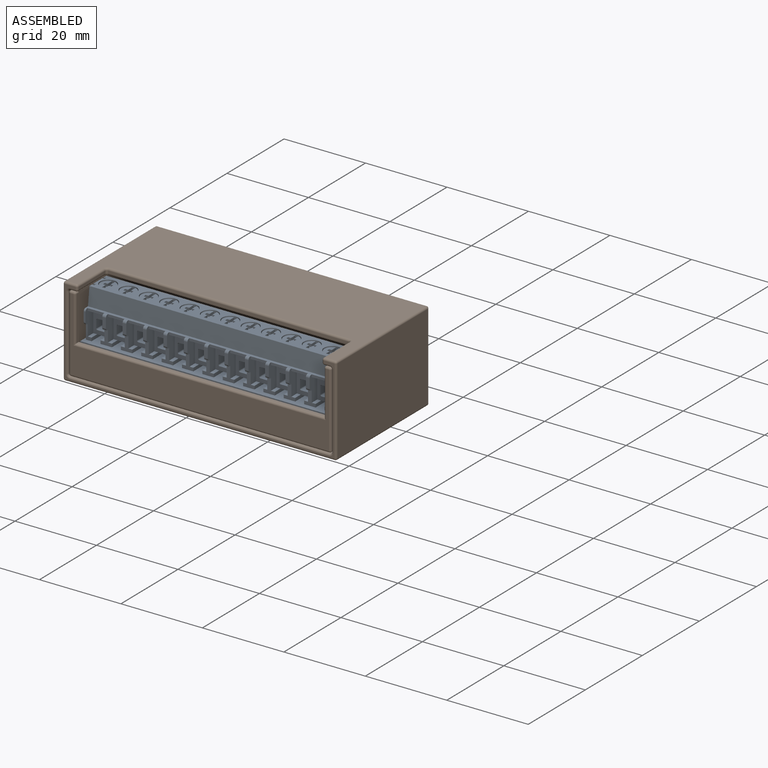
[diagram: assembled view]
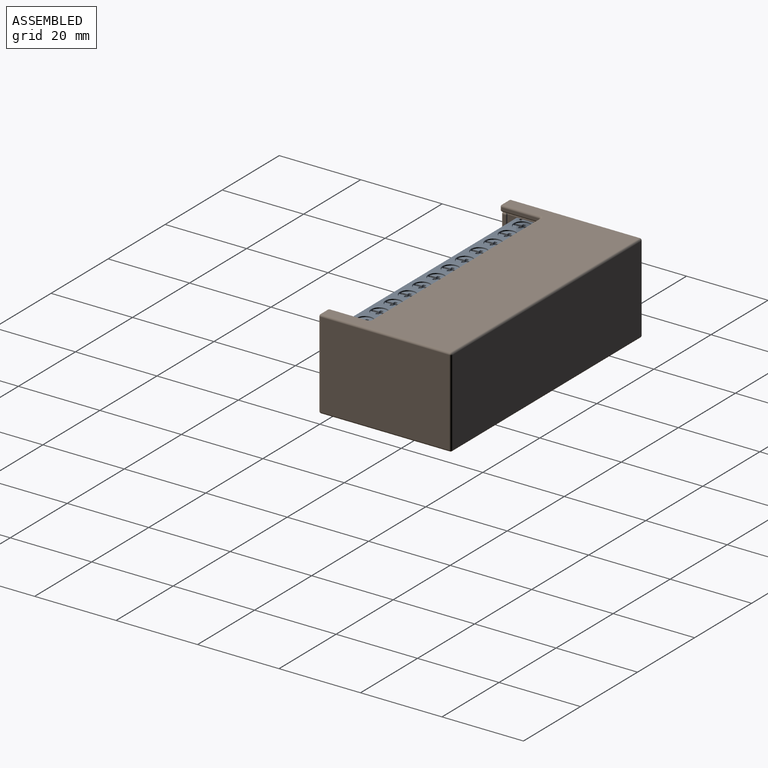
[diagram: assembled view, second angle]
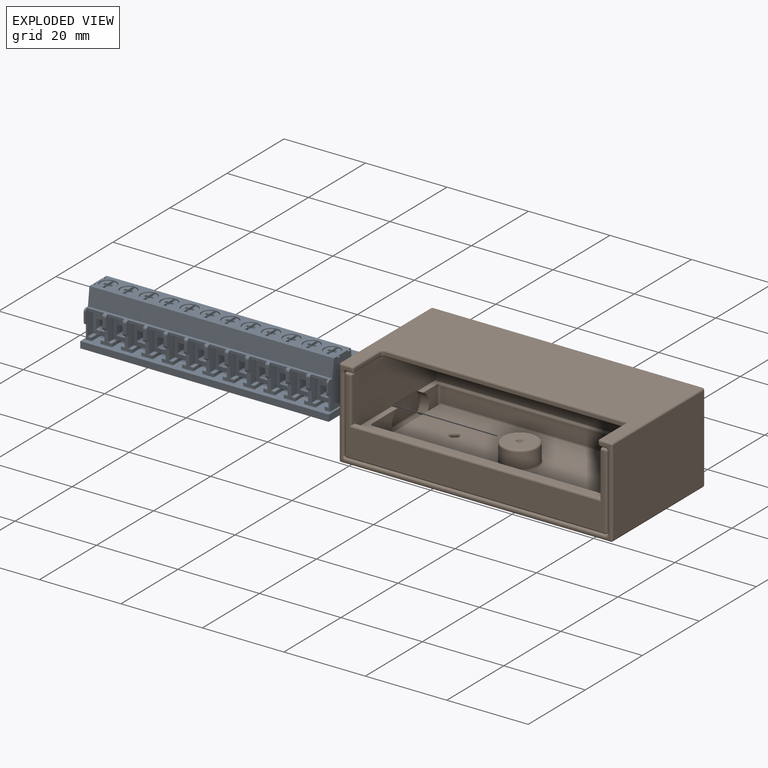
[diagram: exploded view]
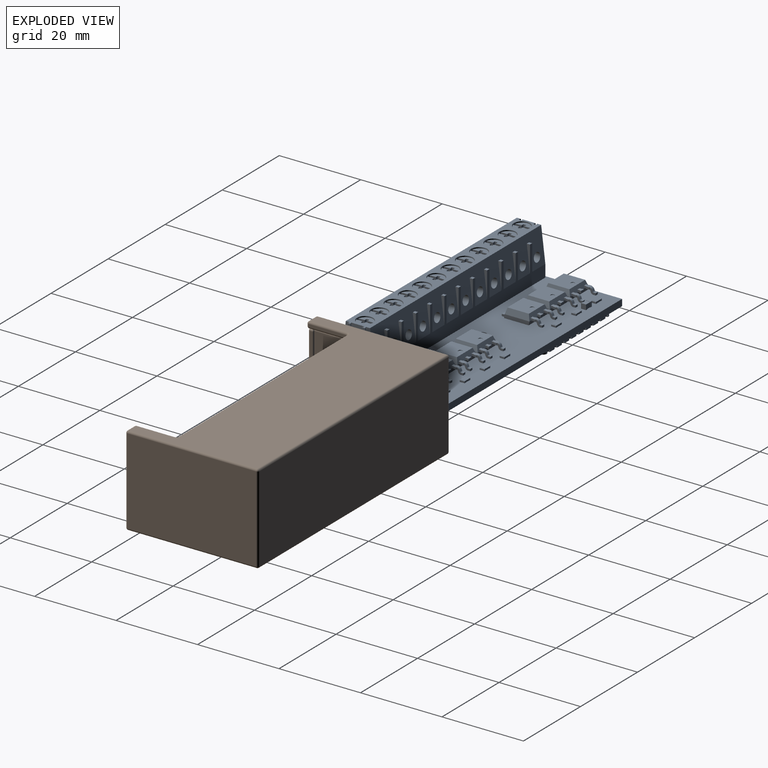
[diagram: exploded view, second angle]
FCSTD DOCUMENT  (FreeCAD 1.0R39319 (Git))
Label: pcb-led-lights
License: All rights reserved
LicenseURL: https://en.wikipedia.org/wiki/All_rights_reserved
objects: Part::Feature×127, App::Part×109, App::Link×16, Sketcher::SketchObject×12, PartDesign::Pad×5, PartDesign::Pocket×5, PartDesign::SubShapeBinder×2, PartDesign::Fillet×2, PartDesign::Body×2, PartDesign::CoordinateSystem×1, Spreadsheet::Sheet×1, PartDesign::ShapeBinder×1, PartDesign::Hole×1
note: 196 computed .brp shape members not serialized (recipe doc carries the construction recipe); baked Part::Feature solids carry a one-line shape summary decoded from their .brp

FEATURE [PartDesign::CoordinateSystem] Local_CS_8cc4
  AttacherType = Attacher::AttachEngine3D
  MapMode = 2
FEATURE [Part::Feature] Pcb_8cc4
  shape: bbox 61 x 28 x 1.6 mm, 19 faces (baked)
FEATURE [Sketcher::SketchObject] PCB_Sketch_8cc4
  ArcFitTolerance = 1e-06
  FullyConstrained = false
  MakeInternals = false
  sketch-geometry (4):
    g0: LineSegment StartX=34 StartY=-32 StartZ=0 EndX=95 EndY=-32 EndZ=0
    g1: LineSegment StartX=95 StartY=-32 StartZ=0 EndX=95 EndY=-60 EndZ=0
    g2: LineSegment StartX=95 StartY=-60 StartZ=0 EndX=34 EndY=-60 EndZ=0
    g3: LineSegment StartX=34 StartY=-60 StartZ=0 EndX=34 EndY=-32 EndZ=0
  constraints (4):
    c: Coincident(g2,g3)
    c: Coincident(g0,g3)
    c: Coincident(g1,g2)
    c: Coincident(g0,g1)
FEATURE [App::Part] Board_Geoms_8cc4
  Group = -> [Pcb_8cc4,PCB_Sketch_8cc4]
  Origin = -> Origin
FEATURE [Part::Feature] Part__Feature  label="932d09b3-9c39-11ed-93f0-dde97e994e83_part"
  shape: bbox 6.22 x 6.5 x 2.3 mm, 13 faces (baked)
FEATURE [App::Part] _32d09b3_9c39_11ed_93f0_dde97e994e83  label="932d09b3-9c39-11ed-93f0-dde97e994e83"
  Group = -> [Part__Feature]
  Origin = -> Origin008
FEATURE [Part::Feature] Part__Feature001  label="932d09b4-9c39-11ed-93f0-dde97e994e83_part"
  shape: bbox 5.24 x 5.4 x 0.5 mm, 16 faces (baked)
FEATURE [App::Part] _32d09b4_9c39_11ed_93f0_dde97e994e83  label="932d09b4-9c39-11ed-93f0-dde97e994e83"
  Group = -> [Part__Feature001]
  Origin = -> Origin009
FEATURE [Part::Feature] Part__Feature002  label="932d09b5-9c39-11ed-93f0-dde97e994e83_part"
  shape: bbox 3.552 x 0.99 x 1.44 mm, 22 faces (baked)
FEATURE [Part::Feature] Part__Feature003  label="932d09b5-9c39-11ed-93f0-dde97e994e83_part001"
  shape: bbox 1.672 x 0.99 x 0.5 mm, 10 faces (baked)
FEATURE [Part::Feature] Part__Feature004  label="932d09b5-9c39-11ed-93f0-dde97e994e83_part002"
  shape: bbox 3.552 x 0.99 x 1.44 mm, 22 faces (baked)
FEATURE [App::Part] _32d09b5_9c39_11ed_93f0_dde97e994e83_part  label="932d09b5-9c39-11ed-93f0-dde97e994e83_part003"
  Group = -> [Part__Feature002,Part__Feature003,Part__Feature004]
  Origin = -> Origin010
FEATURE [App::Part] _32d09b5_9c39_11ed_93f0_dde97e994e83  label="932d09b5-9c39-11ed-93f0-dde97e994e83"
  Group = -> [_32d09b5_9c39_11ed_93f0_dde97e994e83_part]
  Origin = -> Origin011
FEATURE [App::Part] _32d09b2_9c39_11ed_93f0_dde97e994e83  label="932d09b2-9c39-11ed-93f0-dde97e994e83"
  Group = -> [_32d09b3_9c39_11ed_93f0_dde97e994e83,_32d09b4_9c39_11ed_93f0_dde97e994e83,_32d09b5_9c39_11ed_93f0_dde97e994e83]
  Origin = -> Origin012
FEATURE [App::Part] CQ_assembly  label="Q2_CQ assembly_edc7eedcdf41"
  Group = -> [_32d09b2_9c39_11ed_93f0_dde97e994e83]
  Origin = -> Origin013
  Placement = pos=(44.725,-43.065,0) rot=(0,0,-1;1.5708rad)
FEATURE [Part::Feature] Shape  label="R2_R_0805_2012Metric_68a99243c853"
  Placement = pos=(45.004,-35.5,0) rot=(0,0,1;0rad)
  shape: bbox 2 x 1.2 x 0.45 mm, 26 faces (baked)
FEATURE [App::Link] Q2_CQ_assembly_edc7eedcdf41_ln_  label="Q3_CQ assembly_f58a9bf33e79"
  LinkPlacement = pos=(51.8622,-43.065,0) rot=(0,0,-1;1.5708rad)
  LinkedObject = -> CQ_assembly
  Placement = pos=(51.8622,-43.065,0) rot=(0,0,-1;1.5708rad)
FEATURE [App::Link] Q2_CQ_assembly_edc7eedcdf41_ln_001  label="Q5_CQ assembly_488449aacf6f"
  LinkPlacement = pos=(77.0856,-43.065,0) rot=(0,0,-1;1.5708rad)
  LinkedObject = -> CQ_assembly
  Placement = pos=(77.0856,-43.065,0) rot=(0,0,-1;1.5708rad)
FEATURE [App::Link] Q2_CQ_assembly_edc7eedcdf41_ln_002  label="Q7_CQ assembly_62c27bfdfe16"
  LinkPlacement = pos=(91.1907,-43.0596,0) rot=(0,0,-1;1.5708rad)
  LinkedObject = -> CQ_assembly
  Placement = pos=(91.1907,-43.0596,0) rot=(0,0,-1;1.5708rad)
FEATURE [App::Link] R2_R_0805_2012Metric_68a99243c853_ln_  label="R3_R_0805_2012Metric_262a9b6031d1"
  LinkPlacement = pos=(51.9125,-35.5813,0) rot=(0,0,1;0rad)
  LinkedObject = -> Shape
  Placement = pos=(51.9125,-35.5813,0) rot=(0,0,1;0rad)
FEATURE [App::Link] R2_R_0805_2012Metric_68a99243c853_ln_001  label="R5_R_0805_2012Metric_b6d5afd487c0"
  LinkPlacement = pos=(77.0875,-35.5,0) rot=(0,0,1;0rad)
  LinkedObject = -> Shape
  Placement = pos=(77.0875,-35.5,0) rot=(0,0,1;0rad)
FEATURE [App::Link] R2_R_0805_2012Metric_68a99243c853_ln_002  label="R7_R_0805_2012Metric_992a4528c202"
  LinkPlacement = pos=(91.0875,-35.5,0) rot=(0,0,1;0rad)
  LinkedObject = -> Shape
  Placement = pos=(91.0875,-35.5,0) rot=(0,0,1;0rad)
FEATURE [App::Link] R2_R_0805_2012Metric_68a99243c853_ln_003  label="R4_R_0805_2012Metric_be362a1d4efe"
  LinkPlacement = pos=(70.0875,-35.5,0) rot=(0,0,1;0rad)
  LinkedObject = -> Shape
  Placement = pos=(70.0875,-35.5,0) rot=(0,0,1;0rad)
FEATURE [Part::Feature] Shape001  label="J1_TerminalBlock_Phoenix_PT_15_12_50_H_1x12_P500mm_Horizontal_85614fca4c1a"
  Placement = pos=(37,-54.5,0) rot=(0,0,1;0rad)
  shape: bbox 60.57 x 9 x 15 mm, 626 faces (baked)
FEATURE [App::Link] Q2_CQ_assembly_edc7eedcdf41_ln_003  label="Q6_CQ assembly_329d31341388"
  LinkPlacement = pos=(84.1407,-43.0596,0) rot=(0,0,-1;1.5708rad)
  LinkedObject = -> CQ_assembly
  Placement = pos=(84.1407,-43.0596,0) rot=(0,0,-1;1.5708rad)
FEATURE [App::Link] Q2_CQ_assembly_edc7eedcdf41_ln_004  label="Q1_CQ assembly_8688bce08c21"
  LinkPlacement = pos=(37.6519,-43.065,0) rot=(0,0,-1;1.5708rad)
  LinkedObject = -> CQ_assembly
  Placement = pos=(37.6519,-43.065,0) rot=(0,0,-1;1.5708rad)
FEATURE [App::Link] Q2_CQ_assembly_edc7eedcdf41_ln_005  label="Q4_CQ assembly_01b1f6b48aea"
  LinkPlacement = pos=(70.025,-43.065,0) rot=(0,0,-1;1.5708rad)
  LinkedObject = -> CQ_assembly
  Placement = pos=(70.025,-43.065,0) rot=(0,0,-1;1.5708rad)
FEATURE [App::Link] R2_R_0805_2012Metric_68a99243c853_ln_004  label="R1_R_0805_2012Metric_8bf60eb6a1d0"
  LinkPlacement = pos=(38.004,-35.5,0) rot=(0,0,1;0rad)
  LinkedObject = -> Shape
  Placement = pos=(38.004,-35.5,0) rot=(0,0,1;0rad)
FEATURE [Part::Feature] Shape002  label="C11_C_0805_2012Metric_26aba6e4beb2"
  Placement = pos=(41.55,-35.5,0) rot=(0,0,1;3.14159rad)
  shape: bbox 2 x 1.25 x 1.25 mm, 28 faces (baked)
FEATURE [App::Link] R2_R_0805_2012Metric_68a99243c853_ln_005  label="R6_R_0805_2012Metric_894dc72cd039"
  LinkPlacement = pos=(84.0875,-35.5,0) rot=(0,0,1;0rad)
  LinkedObject = -> Shape
  Placement = pos=(84.0875,-35.5,0) rot=(0,0,1;0rad)
FEATURE [App::Part] Top_8cc4
  Group = -> [CQ_assembly,Shape,Q2_CQ_assembly_edc7eedcdf41_ln_,Q2_CQ_assembly_edc7eedcdf41_ln_001,Q2_CQ_assembly_edc7eedcdf41_ln_002,R2_R_0805_2012Metric_68a99243c853_ln_,R2_R_0805_2012Metric_68a99243c853_ln_001,R2_R_0805_2012Metric_68a99243c853_ln_002,R2_R_0805_2012Metric_68a99243c853_ln_003,Shape001,Q2_CQ_assembly_edc7eedcdf41_ln_003,Q2_CQ_assembly_edc7eedcdf41_ln_004,Q2_CQ_assembly_edc7eedcdf41_ln_005,+3 more]
  Origin = -> Origin003
FEATURE [App::Link] C11_C_0805_2012Metric_26aba6e4beb2_ln_  label="C1_C_0805_2012Metric_4d4f115a3bc2"
  LinkPlacement = pos=(82.75,-39.2,-1.6) rot=(0.707107,0.707107,0;3.14159rad)
  LinkedObject = -> Shape002
  Placement = pos=(82.75,-39.2,-1.6) rot=(0.707107,0.707107,0;3.14159rad)
FEATURE [Part::Feature] Part__Feature005  label="BOARD"
  Placement = pos=(0,0,-0.798424) rot=(0,0,1;0rad)
  shape: bbox 18.02 x 23.52 x 1.6 mm, 284 faces (baked)
FEATURE [Part::Feature] Part__Feature006  label="USER_LIBRARY-RES_0603-0201_1"
  shape: bbox 0.63 x 0.275 x 0.33 mm, 6 faces (baked)
FEATURE [Part::Feature] Part__Feature007  label="USER_LIBRARY-RES_0603-0201_2"
  shape: bbox 0.1 x 0.325 x 0.33 mm, 14 faces (baked)
FEATURE [Part::Feature] Part__Feature008  label="USER_LIBRARY-RES_0603-0201_3"
  shape: bbox 0.1 x 0.325 x 0.33 mm, 14 faces (baked)
FEATURE [Part::Feature] Part__Feature009  label="USER_LIBRARY-RES_0603-0201_4"
  shape: bbox 0.48 x 0.035 x 0.33 mm, 48 faces (baked)
FEATURE [App::Part] USER_LIBRARY_RES_0603_0201_ASM  label="USER_LIBRARY-RES_0603-0201_ASM"
  Group = -> [Part__Feature006,Part__Feature007,Part__Feature008,Part__Feature009]
  Origin = -> Origin014
  Placement = pos=(-12.3696,-7.69188,0) rot=(0.57735,-0.57735,-0.57735;2.0944rad)
FEATURE [App::Part] L_ASM
  Group = -> [USER_LIBRARY_RES_0603_0201_ASM]
  Origin = -> Origin015
FEATURE [Part::Feature] Part__Feature010  label="USER_LIBRARY-RES_0603-0201_005"
  shape: bbox 0.63 x 0.275 x 0.33 mm, 6 faces (baked)
FEATURE [Part::Feature] Part__Feature011  label="USER_LIBRARY-RES_0603-0201_006"
  shape: bbox 0.1 x 0.325 x 0.33 mm, 14 faces (baked)
FEATURE [Part::Feature] Part__Feature012  label="USER_LIBRARY-RES_0603-0201_007"
  shape: bbox 0.1 x 0.325 x 0.33 mm, 14 faces (baked)
FEATURE [Part::Feature] Part__Feature013  label="USER_LIBRARY-RES_0603-0201_008"
  shape: bbox 0.48 x 0.035 x 0.33 mm, 48 faces (baked)
FEATURE [App::Part] USER_LIBRARY_RES_0603_0201_ASM001  label="USER_LIBRARY-RES_0603-0201_ASM001"
  Group = -> [Part__Feature010,Part__Feature011,Part__Feature012,Part__Feature013]
  Origin = -> Origin016
  Placement = pos=(-4.62272,-5.41028,0) rot=(0.57735,0.57735,0.57735;2.0944rad)
FEATURE [App::Part] R1_ASM
  Group = -> [USER_LIBRARY_RES_0603_0201_ASM001]
  Origin = -> Origin017
FEATURE [Part::Feature] Part__Feature014  label="EXTRUDED-29178"
  shape: bbox 1.5 x 1.8 x 1 mm, 6 faces (baked)
FEATURE [App::Part] _07732368_ASM  label="907732368_ASM"
  Group = -> [Part__Feature014]
  Origin = -> Origin018
  Placement = pos=(-7.62,-0.417579,0) rot=(0,0,1;0rad)
FEATURE [App::Part] LED1_ASM
  Group = -> [_07732368_ASM]
  Origin = -> Origin019
FEATURE [Part::Feature] Part__Feature015  label="2_A"
  shape: bbox 0.1 x 0.32 x 0.32 mm, 206 faces (baked)
FEATURE [Part::Feature] Part__Feature016  label="300"
  shape: bbox 0.1 x 0.32 x 0.32 mm, 18 faces (baked)
FEATURE [Part::Feature] Part__Feature017  label="_10001"
  shape: bbox 0.4 x 0.3 x 0.3 mm, 53 faces (baked)
FEATURE [App::Part] C_0201_1099_AF1_ASM_ASM  label="C_0201-1099_AF1_ASM_ASM"
  Group = -> [Part__Feature015,Part__Feature016,Part__Feature017]
  Origin = -> Origin020
FEATURE [App::Part] C_0201_4408_AF1_ASM_ASM  label="C_0201-4408_AF1_ASM_ASM"
  Group = -> [C_0201_1099_AF1_ASM_ASM]
  Origin = -> Origin021
FEATURE [App::Part] _D_MODEL_ASM  label="3D_MODEL_ASM"
  Group = -> [C_0201_4408_AF1_ASM_ASM]
  Origin = -> Origin022
  Placement = pos=(-13.3916,4.07027,-0.366623) rot=(0,0,-1;1.5708rad)
FEATURE [App::Part] C16_ASM
  Group = -> [_D_MODEL_ASM]
  Origin = -> Origin023
FEATURE [Part::Feature] Part__Feature018  label="EXTRUDED-51780"
  shape: bbox 1.6 x 2 x 1 mm, 6 faces (baked)
FEATURE [App::Part] _07732240_ASM  label="907732240_ASM"
  Group = -> [Part__Feature018]
  Origin = -> Origin024
  Placement = pos=(-12.8778,-5.3848,0) rot=(0,0,1;0rad)
FEATURE [App::Part] Y1_ASM
  Group = -> [_07732240_ASM]
  Origin = -> Origin025
FEATURE [Part::Feature] Part__Feature019  label="USER_LIBRARY-RES_0603-0201_009"
  shape: bbox 0.63 x 0.275 x 0.33 mm, 6 faces (baked)
FEATURE [Part::Feature] Part__Feature020  label="USER_LIBRARY-RES_0603-0201_010"
  shape: bbox 0.1 x 0.325 x 0.33 mm, 14 faces (baked)
FEATURE [Part::Feature] Part__Feature021  label="USER_LIBRARY-RES_0603-0201_011"
  shape: bbox 0.1 x 0.325 x 0.33 mm, 14 faces (baked)
FEATURE [Part::Feature] Part__Feature022  label="USER_LIBRARY-RES_0603-0201_012"
  shape: bbox 0.48 x 0.035 x 0.33 mm, 48 faces (baked)
FEATURE [App::Part] USER_LIBRARY_RES_0603_0201_ASM002  label="USER_LIBRARY-RES_0603-0201_ASM002"
  Group = -> [Part__Feature019,Part__Feature020,Part__Feature021,Part__Feature022]
  Origin = -> Origin026
  Placement = pos=(-1.82888,2.00668,0) rot=(0.57735,-0.57735,-0.57735;2.0944rad)
FEATURE [App::Part] R5_ASM
  Group = -> [USER_LIBRARY_RES_0603_0201_ASM002]
  Origin = -> Origin027
FEATURE [Part::Feature] Part__Feature023  label="USER_LIBRARY-RES_0603-0201_013"
  shape: bbox 0.63 x 0.275 x 0.33 mm, 6 faces (baked)
FEATURE [Part::Feature] Part__Feature024  label="USER_LIBRARY-RES_0603-0201_014"
  shape: bbox 0.1 x 0.325 x 0.33 mm, 14 faces (baked)
FEATURE [Part::Feature] Part__Feature025  label="USER_LIBRARY-RES_0603-0201_015"
  shape: bbox 0.1 x 0.325 x 0.33 mm, 14 faces (baked)
FEATURE [Part::Feature] Part__Feature026  label="USER_LIBRARY-RES_0603-0201_016"
  shape: bbox 0.48 x 0.035 x 0.33 mm, 48 faces (baked)
FEATURE [App::Part] USER_LIBRARY_RES_0603_0201_ASM003  label="USER_LIBRARY-RES_0603-0201_ASM003"
  Group = -> [Part__Feature023,Part__Feature024,Part__Feature025,Part__Feature026]
  Origin = -> Origin028
  Placement = pos=(-13.3916,2.00652,0) rot=(0.57735,0.57735,0.57735;2.0944rad)
FEATURE [App::Part] R6_ASM
  Group = -> [USER_LIBRARY_RES_0603_0201_ASM003]
  Origin = -> Origin029
FEATURE [Part::Feature] Part__Feature027  label="USER_LIBRARY-RES_0603-0201_017"
  shape: bbox 0.63 x 0.275 x 0.33 mm, 6 faces (baked)
FEATURE [Part::Feature] Part__Feature028  label="USER_LIBRARY-RES_0603-0201_018"
  shape: bbox 0.1 x 0.325 x 0.33 mm, 14 faces (baked)
FEATURE [Part::Feature] Part__Feature029  label="USER_LIBRARY-RES_0603-0201_019"
  shape: bbox 0.1 x 0.325 x 0.33 mm, 14 faces (baked)
FEATURE [Part::Feature] Part__Feature030  label="USER_LIBRARY-RES_0603-0201_020"
  shape: bbox 0.48 x 0.035 x 0.33 mm, 48 faces (baked)
FEATURE [App::Part] USER_LIBRARY_RES_0603_0201_ASM004  label="USER_LIBRARY-RES_0603-0201_ASM004"
  Group = -> [Part__Feature027,Part__Feature028,Part__Feature029,Part__Feature030]
  Origin = -> Origin030
  Placement = pos=(-1.82872,6.13402,0) rot=(0.57735,0.57735,0.57735;2.0944rad)
FEATURE [App::Part] R7_ASM
  Group = -> [USER_LIBRARY_RES_0603_0201_ASM004]
  Origin = -> Origin031
FEATURE [Part::Feature] Part__Feature031  label="USER_LIBRARY-RES_0603-0201_021"
  shape: bbox 0.63 x 0.275 x 0.33 mm, 6 faces (baked)
FEATURE [Part::Feature] Part__Feature032  label="USER_LIBRARY-RES_0603-0201_022"
  shape: bbox 0.1 x 0.325 x 0.33 mm, 14 faces (baked)
FEATURE [Part::Feature] Part__Feature033  label="USER_LIBRARY-RES_0603-0201_023"
  shape: bbox 0.1 x 0.325 x 0.33 mm, 14 faces (baked)
FEATURE [Part::Feature] Part__Feature034  label="USER_LIBRARY-RES_0603-0201_024"
  shape: bbox 0.48 x 0.035 x 0.33 mm, 48 faces (baked)
FEATURE [App::Part] USER_LIBRARY_RES_0603_0201_ASM005  label="USER_LIBRARY-RES_0603-0201_ASM005"
  Group = -> [Part__Feature031,Part__Feature032,Part__Feature033,Part__Feature034]
  Origin = -> Origin032
  Placement = pos=(-10.6701,-9.85512,0) rot=(0.57735,-0.57735,-0.57735;2.0944rad)
FEATURE [App::Part] R4_ASM
  Group = -> [USER_LIBRARY_RES_0603_0201_ASM005]
  Origin = -> Origin033
FEATURE [Part::Feature] Part__Feature035  label="USER_LIBRARY-RES_0603-0201_025"
  shape: bbox 0.63 x 0.275 x 0.33 mm, 6 faces (baked)
FEATURE [Part::Feature] Part__Feature036  label="USER_LIBRARY-RES_0603-0201_026"
  shape: bbox 0.1 x 0.325 x 0.33 mm, 14 faces (baked)
FEATURE [Part::Feature] Part__Feature037  label="USER_LIBRARY-RES_0603-0201_027"
  shape: bbox 0.1 x 0.325 x 0.33 mm, 14 faces (baked)
FEATURE [Part::Feature] Part__Feature038  label="USER_LIBRARY-RES_0603-0201_028"
  shape: bbox 0.48 x 0.035 x 0.33 mm, 48 faces (baked)
FEATURE [App::Part] USER_LIBRARY_RES_0603_0201_ASM006  label="USER_LIBRARY-RES_0603-0201_ASM006"
  Group = -> [Part__Feature035,Part__Feature036,Part__Feature037,Part__Feature038]
  Origin = -> Origin034
  Placement = pos=(-1.82872,4.07027,0) rot=(0.57735,0.57735,0.57735;2.0944rad)
FEATURE [App::Part] R3_ASM
  Group = -> [USER_LIBRARY_RES_0603_0201_ASM006]
  Origin = -> Origin035
FEATURE [Part::Feature] Part__Feature039  label="USER_LIBRARY-RES_0603-0201_029"
  shape: bbox 0.63 x 0.275 x 0.33 mm, 6 faces (baked)
FEATURE [Part::Feature] Part__Feature040  label="USER_LIBRARY-RES_0603-0201_030"
  shape: bbox 0.1 x 0.325 x 0.33 mm, 14 faces (baked)
FEATURE [Part::Feature] Part__Feature041  label="USER_LIBRARY-RES_0603-0201_031"
  shape: bbox 0.1 x 0.325 x 0.33 mm, 14 faces (baked)
FEATURE [Part::Feature] Part__Feature042  label="USER_LIBRARY-RES_0603-0201_032"
  shape: bbox 0.48 x 0.035 x 0.33 mm, 48 faces (baked)
FEATURE [App::Part] USER_LIBRARY_RES_0603_0201_ASM007  label="USER_LIBRARY-RES_0603-0201_ASM007"
  Group = -> [Part__Feature039,Part__Feature040,Part__Feature041,Part__Feature042]
  Origin = -> Origin036
  Placement = pos=(-13.3916,6.13402,0) rot=(0.57735,0.57735,0.57735;2.0944rad)
FEATURE [App::Part] R2_ASM
  Group = -> [USER_LIBRARY_RES_0603_0201_ASM007]
  Origin = -> Origin037
FEATURE [Part::Feature] Part__Feature043  label="CYLINDER"
  shape: bbox 1.5 x 1.5 x 1.75 mm, 4 faces (baked)
FEATURE [App::Part] _67154856_ASM  label="967154856_ASM"
  Group = -> [Part__Feature043]
  Origin = -> Origin038
  Placement = pos=(-3.62622,-0.520729,0) rot=(0,0,0.991678;0rad)
FEATURE [Part::Feature] Part__Feature044  label="EXTRUDED-52493"
  shape: bbox 4.121 x 2.5 x 1.4 mm, 14 faces (baked)
FEATURE [App::Part] _07731856_ASM  label="907731856_ASM"
  Group = -> [Part__Feature044]
  Origin = -> Origin039
  Placement = pos=(-3.62578,-0.520721,0) rot=(0,0,1;0rad)
FEATURE [App::Part] KEY1_ASM
  Group = -> [_67154856_ASM,_07731856_ASM]
  Origin = -> Origin040
FEATURE [Part::Feature] Part__Feature045  label="CYLINDER001"
  shape: bbox 1.5 x 1.5 x 1.75 mm, 4 faces (baked)
FEATURE [App::Part] _67154856_ASM001  label="967154856_ASM001"
  Group = -> [Part__Feature045]
  Origin = -> Origin041
  Placement = pos=(-11.6082,-0.520706,0) rot=(0,0,0.991678;0rad)
FEATURE [Part::Feature] Part__Feature046  label="EXTRUDED-52494"
  shape: bbox 4.121 x 2.5 x 1.4 mm, 14 faces (baked)
FEATURE [App::Part] _07731856_ASM001  label="907731856_ASM001"
  Group = -> [Part__Feature046]
  Origin = -> Origin042
  Placement = pos=(-11.6078,-0.520706,0) rot=(0,0,1;0rad)
FEATURE [App::Part] KEY2_ASM
  Group = -> [_67154856_ASM001,_07731856_ASM001]
  Origin = -> Origin043
FEATURE [Part::Feature] Part__Feature047  label="SOLID-53009"
  shape: bbox 8.342 x 3.562 x 7.052 mm, 1006 faces (baked)
FEATURE [Part::Feature] Part__Feature048  label="SOLID-143223"
  shape: bbox 0.265 x 1.45 x 0.87 mm, 14 faces (baked)
FEATURE [Part::Feature] Part__Feature049  label="SOLID-144338"
  shape: bbox 0.265 x 1.45 x 0.87 mm, 14 faces (baked)
FEATURE [Part::Feature] Part__Feature050  label="SOLID-145388"
  shape: bbox 0.25 x 1.45 x 0.87 mm, 16 faces (baked)
FEATURE [Part::Feature] Part__Feature051  label="SOLID-146644"
  shape: bbox 0.25 x 1.45 x 0.87 mm, 16 faces (baked)
FEATURE [Part::Feature] Part__Feature052  label="SOLID-147831"
  shape: bbox 0.25 x 2.03 x 6.58 mm, 28 faces (baked)
FEATURE [Part::Feature] Part__Feature053  label="SOLID-150234"
  shape: bbox 0.25 x 2.03 x 6.58 mm, 28 faces (baked)
FEATURE [Part::Feature] Part__Feature054  label="SOLID-152660"
  shape: bbox 0.25 x 1.57 x 6.58 mm, 27 faces (baked)
FEATURE [Part::Feature] Part__Feature055  label="SOLID-154943"
  shape: bbox 0.25 x 1.57 x 6.58 mm, 27 faces (baked)
FEATURE [Part::Feature] Part__Feature056  label="SOLID-157249"
  shape: bbox 0.25 x 0.24 x 5.71 mm, 15 faces (baked)
FEATURE [Part::Feature] Part__Feature057  label="SOLID-158561"
  shape: bbox 0.25 x 0.24 x 5.71 mm, 15 faces (baked)
FEATURE [Part::Feature] Part__Feature058  label="SOLID-159781"
  shape: bbox 0.8504 x 1.589 x 7.131 mm, 39 faces (baked)
FEATURE [Part::Feature] Part__Feature059  label="SOLID-163336"
  shape: bbox 0.3502 x 2.03 x 6.78 mm, 40 faces (baked)
FEATURE [Part::Feature] Part__Feature060  label="SOLID-167407"
  shape: bbox 0.3504 x 0.2404 x 5.911 mm, 27 faces (baked)
FEATURE [Part::Feature] Part__Feature061  label="SOLID-170291"
  shape: bbox 0.3502 x 2.03 x 6.78 mm, 40 faces (baked)
FEATURE [Part::Feature] Part__Feature062  label="SOLID-174503"
  shape: bbox 0.3504 x 0.2404 x 5.911 mm, 27 faces (baked)
FEATURE [Part::Feature] Part__Feature063  label="SOLID-177593"
  shape: bbox 0.8504 x 1.589 x 7.131 mm, 39 faces (baked)
FEATURE [Part::Feature] Part__Feature064  label="SOLID-181167"
  shape: bbox 0.25 x 0.24 x 4.21 mm, 16 faces (baked)
FEATURE [Part::Feature] Part__Feature065  label="SOLID-182488"
  shape: bbox 0.25 x 0.24 x 4.21 mm, 16 faces (baked)
FEATURE [Part::Feature] Part__Feature066  label="SOLID-183901"
  shape: bbox 1.116 x 2.031 x 7.131 mm, 55 faces (baked)
FEATURE [Part::Feature] Part__Feature067  label="SOLID-188917"
  shape: bbox 1.116 x 2.031 x 7.131 mm, 55 faces (baked)
FEATURE [Part::Feature] Part__Feature068  label="SOLID-193998"
  shape: bbox 9.582 x 4.162 x 7.532 mm, 443 faces (baked)
FEATURE [App::Part] _98B116_264_211_ASM  label="698B116-264-211_ASM"
  Group = -> [Part__Feature047,Part__Feature048,Part__Feature049,Part__Feature050,Part__Feature051,Part__Feature052,Part__Feature053,Part__Feature054,Part__Feature055,Part__Feature056,Part__Feature057,Part__Feature058,Part__Feature059,Part__Feature060,Part__Feature061,Part__Feature062,Part__Feature063,Part__Feature064,Part__Feature065,Part__Feature066,Part__Feature067,Part__Feature068]
  Origin = -> Origin044
  Placement = pos=(8.41715,14.7597,-11.5) rot=(0,0.707107,0.707107;3.14159rad)
FEATURE [App::Part] J1_ASM
  Group = -> [_98B116_264_211_ASM]
  Origin = -> Origin045
FEATURE [Part::Feature] Part__Feature069  label="USER_LIBRARY-RES_0603-0201_033"
  shape: bbox 0.63 x 0.275 x 0.33 mm, 6 faces (baked)
FEATURE [Part::Feature] Part__Feature070  label="USER_LIBRARY-RES_0603-0201_034"
  shape: bbox 0.1 x 0.325 x 0.33 mm, 14 faces (baked)
FEATURE [Part::Feature] Part__Feature071  label="USER_LIBRARY-RES_0603-0201_035"
  shape: bbox 0.1 x 0.325 x 0.33 mm, 14 faces (baked)
FEATURE [Part::Feature] Part__Feature072  label="USER_LIBRARY-RES_0603-0201_036"
  shape: bbox 0.48 x 0.035 x 0.33 mm, 48 faces (baked)
FEATURE [App::Part] USER_LIBRARY_RES_0603_0201_ASM008  label="USER_LIBRARY-RES_0603-0201_ASM008"
  Group = -> [Part__Feature069,Part__Feature070,Part__Feature071,Part__Feature072]
  Origin = -> Origin046
  Placement = pos=(-6.23578,-9.05518,0) rot=(1,0,0;1.5708rad)
FEATURE [App::Part] IND1_ASM
  Group = -> [USER_LIBRARY_RES_0603_0201_ASM008]
  Origin = -> Origin047
FEATURE [Part::Feature] Part__Feature073  label="SOD323"
  Placement = pos=(-1.905,-4.1656,0) rot=(0,0,1;1.5708rad)
  shape: bbox 1.25 x 2.7 x 1.122 mm, 91 faces (baked)
FEATURE [App::Part] D1_ASM
  Group = -> [Part__Feature073]
  Origin = -> Origin048
FEATURE [Part::Feature] Part__Feature074  label="2_A001"
  shape: bbox 0.1 x 0.32 x 0.32 mm, 206 faces (baked)
FEATURE [Part::Feature] Part__Feature075  label="300001"
  shape: bbox 0.1 x 0.32 x 0.32 mm, 18 faces (baked)
FEATURE [Part::Feature] Part__Feature076  label="_10002"
  shape: bbox 0.4 x 0.3 x 0.3 mm, 53 faces (baked)
FEATURE [App::Part] C_0201_1099_AF1_ASM_ASM001  label="C_0201-1099_AF1_ASM_ASM001"
  Group = -> [Part__Feature074,Part__Feature075,Part__Feature076]
  Origin = -> Origin049
FEATURE [App::Part] C_0201_4408_AF1_ASM_ASM001  label="C_0201-4408_AF1_ASM_ASM001"
  Group = -> [C_0201_1099_AF1_ASM_ASM001]
  Origin = -> Origin050
FEATURE [App::Part] _D_MODEL_ASM001  label="3D_MODEL_ASM001"
  Group = -> [C_0201_4408_AF1_ASM_ASM001]
  Origin = -> Origin051
  Placement = pos=(-12.1411,-2.99728,-0.366623) rot=(0,0,-1;1.5708rad)
FEATURE [App::Part] C15_ASM
  Group = -> [_D_MODEL_ASM001]
  Origin = -> Origin052
FEATURE [Part::Feature] Part__Feature077  label="2_A002"
  shape: bbox 0.1 x 0.32 x 0.32 mm, 206 faces (baked)
FEATURE [Part::Feature] Part__Feature078  label="300002"
  shape: bbox 0.1 x 0.32 x 0.32 mm, 18 faces (baked)
FEATURE [Part::Feature] Part__Feature079  label="_10003"
  shape: bbox 0.4 x 0.3 x 0.3 mm, 53 faces (baked)
FEATURE [App::Part] C_0201_1099_AF1_ASM_ASM002  label="C_0201-1099_AF1_ASM_ASM002"
  Group = -> [Part__Feature077,Part__Feature078,Part__Feature079]
  Origin = -> Origin053
FEATURE [App::Part] C_0201_4408_AF1_ASM_ASM002  label="C_0201-4408_AF1_ASM_ASM002"
  Group = -> [C_0201_1099_AF1_ASM_ASM002]
  Origin = -> Origin054
FEATURE [App::Part] _D_MODEL_ASM002  label="3D_MODEL_ASM002"
  Group = -> [C_0201_4408_AF1_ASM_ASM002]
  Origin = -> Origin055
  Placement = pos=(-6.23578,-10.2871,-0.366623) rot=(0,0,1;3.14159rad)
FEATURE [App::Part] C14_ASM
  Group = -> [_D_MODEL_ASM002]
  Origin = -> Origin056
FEATURE [Part::Feature] Part__Feature080  label="2_A003"
  shape: bbox 0.1 x 0.32 x 0.32 mm, 206 faces (baked)
FEATURE [Part::Feature] Part__Feature081  label="300003"
  shape: bbox 0.1 x 0.32 x 0.32 mm, 18 faces (baked)
FEATURE [Part::Feature] Part__Feature082  label="_10004"
  shape: bbox 0.4 x 0.3 x 0.3 mm, 53 faces (baked)
FEATURE [App::Part] C_0201_1099_AF1_ASM_ASM003  label="C_0201-1099_AF1_ASM_ASM003"
  Group = -> [Part__Feature080,Part__Feature081,Part__Feature082]
  Origin = -> Origin057
FEATURE [App::Part] C_0201_4408_AF1_ASM_ASM003  label="C_0201-4408_AF1_ASM_ASM003"
  Group = -> [C_0201_1099_AF1_ASM_ASM003]
  Origin = -> Origin058
FEATURE [App::Part] _D_MODEL_ASM003  label="3D_MODEL_ASM003"
  Group = -> [C_0201_4408_AF1_ASM_ASM003]
  Origin = -> Origin059
  Placement = pos=(-8.11522,-9.05502,-0.366623) rot=(0.991677,0,0;0rad)
FEATURE [App::Part] C11_ASM
  Group = -> [_D_MODEL_ASM003]
  Origin = -> Origin060
FEATURE [Part::Feature] Part__Feature083  label="_1_10001"
  shape: bbox 0.6 x 0.5 x 0.5 mm, 62 faces (baked)
FEATURE [Part::Feature] Part__Feature084  label="3_1_A"
  shape: bbox 0.2 x 0.52 x 0.52 mm, 354 faces (baked)
FEATURE [Part::Feature] Part__Feature085  label="2_100"
  shape: bbox 0.2 x 0.52 x 0.52 mm, 18 faces (baked)
FEATURE [App::Part] C_0402_672_AF0_ASM_ASM  label="C_0402-672_AF0_ASM_ASM"
  Group = -> [Part__Feature083,Part__Feature084,Part__Feature085]
  Origin = -> Origin061
FEATURE [App::Part] C_0402_4045_AF0_ASM_ASM  label="C_0402-4045_AF0_ASM_ASM"
  Group = -> [C_0402_672_AF0_ASM_ASM]
  Origin = -> Origin062
FEATURE [App::Part] C_0402_ASM
  Group = -> [C_0402_4045_AF0_ASM_ASM]
  Origin = -> Origin063
  Placement = pos=(-4.26712,-10.2615,0.0254) rot=(0,0,0.991678;0rad)
FEATURE [App::Part] C9_ASM
  Group = -> [C_0402_ASM]
  Origin = -> Origin064
FEATURE [Part::Feature] Part__Feature086  label="2_A004"
  shape: bbox 0.1 x 0.32 x 0.32 mm, 206 faces (baked)
FEATURE [Part::Feature] Part__Feature087  label="300004"
  shape: bbox 0.1 x 0.32 x 0.32 mm, 18 faces (baked)
FEATURE [Part::Feature] Part__Feature088  label="_10005"
  shape: bbox 0.4 x 0.3 x 0.3 mm, 53 faces (baked)
FEATURE [App::Part] C_0201_1099_AF1_ASM_ASM004  label="C_0201-1099_AF1_ASM_ASM004"
  Group = -> [Part__Feature086,Part__Feature087,Part__Feature088]
  Origin = -> Origin065
FEATURE [App::Part] C_0201_4408_AF1_ASM_ASM004  label="C_0201-4408_AF1_ASM_ASM004"
  Group = -> [C_0201_1099_AF1_ASM_ASM004]
  Origin = -> Origin066
FEATURE [App::Part] _D_MODEL_ASM004  label="3D_MODEL_ASM004"
  Group = -> [C_0201_4408_AF1_ASM_ASM004]
  Origin = -> Origin067
  Placement = pos=(-8.11522,-10.2869,-0.366623) rot=(0.991677,0,0;0rad)
FEATURE [App::Part] C8_ASM
  Group = -> [_D_MODEL_ASM004]
  Origin = -> Origin068
FEATURE [Part::Feature] Part__Feature089  label="2_A005"
  shape: bbox 0.1 x 0.32 x 0.32 mm, 206 faces (baked)
FEATURE [Part::Feature] Part__Feature090  label="300005"
  shape: bbox 0.1 x 0.32 x 0.32 mm, 18 faces (baked)
FEATURE [Part::Feature] Part__Feature091  label="_10006"
  shape: bbox 0.4 x 0.3 x 0.3 mm, 53 faces (baked)
FEATURE [App::Part] C_0201_1099_AF1_ASM_ASM005  label="C_0201-1099_AF1_ASM_ASM005"
  Group = -> [Part__Feature089,Part__Feature090,Part__Feature091]
  Origin = -> Origin069
FEATURE [App::Part] C_0201_4408_AF1_ASM_ASM005  label="C_0201-4408_AF1_ASM_ASM005"
  Group = -> [C_0201_1099_AF1_ASM_ASM005]
  Origin = -> Origin070
FEATURE [App::Part] _D_MODEL_ASM005  label="3D_MODEL_ASM005"
  Group = -> [C_0201_4408_AF1_ASM_ASM005]
  Origin = -> Origin071
  Placement = pos=(-13.5383,-3.02252,-0.366623) rot=(0,0,1;1.5708rad)
FEATURE [App::Part] C12_ASM
  Group = -> [_D_MODEL_ASM005]
  Origin = -> Origin072
FEATURE [Part::Feature] Part__Feature092  label="2_A006"
  shape: bbox 0.1 x 0.32 x 0.32 mm, 206 faces (baked)
FEATURE [Part::Feature] Part__Feature093  label="300006"
  shape: bbox 0.1 x 0.32 x 0.32 mm, 18 faces (baked)
FEATURE [Part::Feature] Part__Feature094  label="_10007"
  shape: bbox 0.4 x 0.3 x 0.3 mm, 53 faces (baked)
FEATURE [App::Part] C_0201_1099_AF1_ASM_ASM006  label="C_0201-1099_AF1_ASM_ASM006"
  Group = -> [Part__Feature092,Part__Feature093,Part__Feature094]
  Origin = -> Origin073
FEATURE [App::Part] C_0201_4408_AF1_ASM_ASM006  label="C_0201-4408_AF1_ASM_ASM006"
  Group = -> [C_0201_1099_AF1_ASM_ASM006]
  Origin = -> Origin074
FEATURE [App::Part] _D_MODEL_ASM006  label="3D_MODEL_ASM006"
  Group = -> [C_0201_4408_AF1_ASM_ASM006]
  Origin = -> Origin075
  Placement = pos=(-10.3849,-11.3029,-0.366623) rot=(0.991677,0,0;0rad)
FEATURE [App::Part] C13_ASM
  Group = -> [_D_MODEL_ASM006]
  Origin = -> Origin076
FEATURE [Part::Feature] Part__Feature095  label="2_A007"
  shape: bbox 0.1 x 0.32 x 0.32 mm, 206 faces (baked)
FEATURE [Part::Feature] Part__Feature096  label="300007"
  shape: bbox 0.1 x 0.32 x 0.32 mm, 18 faces (baked)
FEATURE [Part::Feature] Part__Feature097  label="_10008"
  shape: bbox 0.4 x 0.3 x 0.3 mm, 53 faces (baked)
FEATURE [App::Part] C_0201_1099_AF1_ASM_ASM007  label="C_0201-1099_AF1_ASM_ASM007"
  Group = -> [Part__Feature095,Part__Feature096,Part__Feature097]
  Origin = -> Origin077
FEATURE [App::Part] C_0201_4408_AF1_ASM_ASM007  label="C_0201-4408_AF1_ASM_ASM007"
  Group = -> [C_0201_1099_AF1_ASM_ASM007]
  Origin = -> Origin078
FEATURE [App::Part] _D_MODEL_ASM007  label="3D_MODEL_ASM007"
  Group = -> [C_0201_4408_AF1_ASM_ASM007]
  Origin = -> Origin079
  Placement = pos=(-10.3851,-8.42018,-0.366623) rot=(0,0,1;3.14159rad)
FEATURE [App::Part] C10_ASM
  Group = -> [_D_MODEL_ASM007]
  Origin = -> Origin080
FEATURE [Part::Feature] Part__Feature098  label="2_A008"
  shape: bbox 0.1 x 0.32 x 0.32 mm, 206 faces (baked)
FEATURE [Part::Feature] Part__Feature099  label="300008"
  shape: bbox 0.1 x 0.32 x 0.32 mm, 18 faces (baked)
FEATURE [Part::Feature] Part__Feature100  label="_10009"
  shape: bbox 0.4 x 0.3 x 0.3 mm, 53 faces (baked)
FEATURE [App::Part] C_0201_1099_AF1_ASM_ASM008  label="C_0201-1099_AF1_ASM_ASM008"
  Group = -> [Part__Feature098,Part__Feature099,Part__Feature100]
  Origin = -> Origin081
FEATURE [App::Part] C_0201_4408_AF1_ASM_ASM008  label="C_0201-4408_AF1_ASM_ASM008"
  Group = -> [C_0201_1099_AF1_ASM_ASM008]
  Origin = -> Origin082
FEATURE [App::Part] _D_MODEL_ASM008  label="3D_MODEL_ASM008"
  Group = -> [C_0201_4408_AF1_ASM_ASM008]
  Origin = -> Origin083
  Placement = pos=(-13.5635,-7.69628,-0.366623) rot=(0,0,-1;1.5708rad)
FEATURE [App::Part] C5_ASM
  Group = -> [_D_MODEL_ASM008]
  Origin = -> Origin084
FEATURE [Part::Feature] Part__Feature101  label="2_A009"
  shape: bbox 0.1 x 0.32 x 0.32 mm, 206 faces (baked)
FEATURE [Part::Feature] Part__Feature102  label="300009"
  shape: bbox 0.1 x 0.32 x 0.32 mm, 18 faces (baked)
FEATURE [Part::Feature] Part__Feature103  label="_10010"
  shape: bbox 0.4 x 0.3 x 0.3 mm, 53 faces (baked)
FEATURE [App::Part] C_0201_1099_AF1_ASM_ASM009  label="C_0201-1099_AF1_ASM_ASM009"
  Group = -> [Part__Feature101,Part__Feature102,Part__Feature103]
  Origin = -> Origin085
FEATURE [App::Part] C_0201_4408_AF1_ASM_ASM009  label="C_0201-4408_AF1_ASM_ASM009"
  Group = -> [C_0201_1099_AF1_ASM_ASM009]
  Origin = -> Origin086
FEATURE [App::Part] _D_MODEL_ASM009  label="3D_MODEL_ASM009"
  Group = -> [C_0201_4408_AF1_ASM_ASM009]
  Origin = -> Origin087
  Placement = pos=(-13.5637,-9.67828,-0.366623) rot=(0,0,1;1.5708rad)
FEATURE [App::Part] C7_ASM
  Group = -> [_D_MODEL_ASM009]
  Origin = -> Origin088
FEATURE [Part::Feature] Part__Feature104  label="2_A010"
  shape: bbox 0.1 x 0.32 x 0.32 mm, 206 faces (baked)
FEATURE [Part::Feature] Part__Feature105  label="300010"
  shape: bbox 0.1 x 0.32 x 0.32 mm, 18 faces (baked)
FEATURE [Part::Feature] Part__Feature106  label="_10011"
  shape: bbox 0.4 x 0.3 x 0.3 mm, 53 faces (baked)
FEATURE [App::Part] C_0201_1099_AF1_ASM_ASM010  label="C_0201-1099_AF1_ASM_ASM010"
  Group = -> [Part__Feature104,Part__Feature105,Part__Feature106]
  Origin = -> Origin089
FEATURE [App::Part] C_0201_4408_AF1_ASM_ASM010  label="C_0201-4408_AF1_ASM_ASM010"
  Group = -> [C_0201_1099_AF1_ASM_ASM010]
  Origin = -> Origin090
FEATURE [App::Part] _D_MODEL_ASM010  label="3D_MODEL_ASM010"
  Group = -> [C_0201_4408_AF1_ASM_ASM010]
  Origin = -> Origin091
  Placement = pos=(-12.3696,-9.67828,-0.366623) rot=(0,0,1;1.5708rad)
FEATURE [App::Part] C6_ASM
  Group = -> [_D_MODEL_ASM010]
  Origin = -> Origin092
FEATURE [Part::Feature] Part__Feature107  label="_1_10002"
  shape: bbox 0.6 x 0.5 x 0.5 mm, 62 faces (baked)
FEATURE [Part::Feature] Part__Feature108  label="3_1_A001"
  shape: bbox 0.2 x 0.52 x 0.52 mm, 354 faces (baked)
FEATURE [Part::Feature] Part__Feature109  label="2_101"
  shape: bbox 0.2 x 0.52 x 0.52 mm, 18 faces (baked)
FEATURE [App::Part] C_0402_672_AF0_ASM_ASM001  label="C_0402-672_AF0_ASM_ASM001"
  Group = -> [Part__Feature107,Part__Feature108,Part__Feature109]
  Origin = -> Origin093
FEATURE [App::Part] C_0402_4045_AF0_ASM_ASM001  label="C_0402-4045_AF0_ASM_ASM001"
  Group = -> [C_0402_672_AF0_ASM_ASM001]
  Origin = -> Origin094
FEATURE [App::Part] C_0402_ASM001
  Group = -> [C_0402_4045_AF0_ASM_ASM001]
  Origin = -> Origin095
  Placement = pos=(-3.40352,-3.42908,0.0254) rot=(0,0,-1;1.5708rad)
FEATURE [App::Part] C4_ASM
  Group = -> [C_0402_ASM001]
  Origin = -> Origin096
FEATURE [Part::Feature] Part__Feature110  label="2_A011"
  shape: bbox 0.1 x 0.32 x 0.32 mm, 206 faces (baked)
FEATURE [Part::Feature] Part__Feature111  label="300011"
  shape: bbox 0.1 x 0.32 x 0.32 mm, 18 faces (baked)
FEATURE [Part::Feature] Part__Feature112  label="_10012"
  shape: bbox 0.4 x 0.3 x 0.3 mm, 53 faces (baked)
FEATURE [App::Part] C_0201_1099_AF1_ASM_ASM011  label="C_0201-1099_AF1_ASM_ASM011"
  Group = -> [Part__Feature110,Part__Feature111,Part__Feature112]
  Origin = -> Origin097
FEATURE [App::Part] C_0201_4408_AF1_ASM_ASM011  label="C_0201-4408_AF1_ASM_ASM011"
  Group = -> [C_0201_1099_AF1_ASM_ASM011]
  Origin = -> Origin098
FEATURE [App::Part] _D_MODEL_ASM011  label="3D_MODEL_ASM011"
  Group = -> [C_0201_4408_AF1_ASM_ASM011]
  Origin = -> Origin099
  Placement = pos=(-3.37828,-5.38472,-0.366623) rot=(0,0,1;1.5708rad)
FEATURE [App::Part] C3_ASM
  Group = -> [_D_MODEL_ASM011]
  Origin = -> Origin100
FEATURE [Part::Feature] Part__Feature113  label="_1_10003"
  shape: bbox 0.6 x 0.5 x 0.5 mm, 62 faces (baked)
FEATURE [Part::Feature] Part__Feature114  label="3_1_A002"
  shape: bbox 0.2 x 0.52 x 0.52 mm, 354 faces (baked)
FEATURE [Part::Feature] Part__Feature115  label="2_102"
  shape: bbox 0.2 x 0.52 x 0.52 mm, 18 faces (baked)
FEATURE [App::Part] C_0402_672_AF0_ASM_ASM002  label="C_0402-672_AF0_ASM_ASM002"
  Group = -> [Part__Feature113,Part__Feature114,Part__Feature115]
  Origin = -> Origin101
FEATURE [App::Part] C_0402_4045_AF0_ASM_ASM002  label="C_0402-4045_AF0_ASM_ASM002"
  Group = -> [C_0402_672_AF0_ASM_ASM002]
  Origin = -> Origin102
FEATURE [App::Part] C_0402_ASM002
  Group = -> [C_0402_4045_AF0_ASM_ASM002]
  Origin = -> Origin103
  Placement = pos=(-2.26068,-10.2871,0.0254) rot=(0,0,1;3.14159rad)
FEATURE [App::Part] C2_ASM
  Group = -> [C_0402_ASM002]
  Origin = -> Origin104
FEATURE [Part::Feature] Part__Feature116  label="2_A012"
  shape: bbox 0.1 x 0.32 x 0.32 mm, 206 faces (baked)
FEATURE [Part::Feature] Part__Feature117  label="300012"
  shape: bbox 0.1 x 0.32 x 0.32 mm, 18 faces (baked)
FEATURE [Part::Feature] Part__Feature118  label="_10013"
  shape: bbox 0.4 x 0.3 x 0.3 mm, 53 faces (baked)
FEATURE [App::Part] C_0201_1099_AF1_ASM_ASM012  label="C_0201-1099_AF1_ASM_ASM012"
  Group = -> [Part__Feature116,Part__Feature117,Part__Feature118]
  Origin = -> Origin105
FEATURE [App::Part] C_0201_4408_AF1_ASM_ASM012  label="C_0201-4408_AF1_ASM_ASM012"
  Group = -> [C_0201_1099_AF1_ASM_ASM012]
  Origin = -> Origin106
FEATURE [App::Part] _D_MODEL_ASM012  label="3D_MODEL_ASM012"
  Group = -> [C_0201_4408_AF1_ASM_ASM012]
  Origin = -> Origin107
  Placement = pos=(-4.67368,-3.37812,-0.366623) rot=(0,0,1;1.5708rad)
FEATURE [App::Part] C1_ASM
  Group = -> [_D_MODEL_ASM012]
  Origin = -> Origin108
FEATURE [Part::Feature] Part__Feature119  label="CORE"
  shape: bbox 5 x 5 x 1 mm, 6 faces (baked)
FEATURE [Part::Feature] Part__Feature120  label="CA-C03"
  shape: bbox 5.7 x 2 x 1 mm, 6 faces (baked)
FEATURE [App::Part] PCB_ASM
  Group = -> [Part__Feature005,L_ASM,R1_ASM,LED1_ASM,C16_ASM,Y1_ASM,R5_ASM,R6_ASM,R7_ASM,R4_ASM,R3_ASM,R2_ASM,KEY1_ASM,KEY2_ASM,J1_ASM,IND1_ASM,D1_ASM,C15_ASM,C14_ASM,C11_ASM,C9_ASM,C8_ASM,C12_ASM,C13_ASM,C10_ASM,C5_ASM,C7_ASM,C6_ASM,C4_ASM,C3_ASM,C2_ASM,C1_ASM,Part__Feature119,Part__Feature120]
  Origin = -> Origin109
FEATURE [App::Part] ESP32_C6_ZERO_ASM  label="U3_ESP32-C6-ZERO_ASM_49417a5598cb"
  Group = -> [PCB_ASM]
  Origin = -> Origin110
  Placement = pos=(45.33,-49.8505,-3.1) rot=(0.707107,-0.707107,0;3.14159rad)
FEATURE [App::Link] C11_C_0805_2012Metric_26aba6e4beb2_ln_001  label="C13_C_0805_2012Metric_3274f88734ed"
  LinkPlacement = pos=(70.5,-39.4,-1.6) rot=(0.707107,0.707107,0;3.14159rad)
  LinkedObject = -> Shape002
  Placement = pos=(70.5,-39.4,-1.6) rot=(0.707107,0.707107,0;3.14159rad)
FEATURE [Part::Feature] Shape003  label="L1_L_APV_ANR6028_6cbe2441af96"
  Placement = pos=(76.5,-39.55,-1.6) rot=(0,1,0;3.14159rad)
  shape: bbox 6.02 x 6 x 2.8 mm, 28 faces (baked)
FEATURE [App::Link] C11_C_0805_2012Metric_26aba6e4beb2_ln_002  label="C12_C_0805_2012Metric_b620870b5b72"
  LinkPlacement = pos=(91.75,-39.25,-1.6) rot=(0.707107,0.707107,0;3.14159rad)
  LinkedObject = -> Shape002
  Placement = pos=(91.75,-39.25,-1.6) rot=(0.707107,0.707107,0;3.14159rad)
FEATURE [Part::Feature] Shape004  label="U1_TSOT_23_6_7789516a092d"
  Placement = pos=(87.1125,-39.2,-1.6) rot=(0,1,0;3.14159rad)
  shape: bbox 2.8 x 2.9 x 0.95 mm, 124 faces (baked)
FEATURE [App::Link] C11_C_0805_2012Metric_26aba6e4beb2_ln_003  label="C2_C_0805_2012Metric_6caecf9a1433"
  LinkPlacement = pos=(65.75,-39.3,-1.6) rot=(0.707107,0.707107,0;3.14159rad)
  LinkedObject = -> Shape002
  Placement = pos=(65.75,-39.3,-1.6) rot=(0.707107,0.707107,0;3.14159rad)
FEATURE [App::Part] Bot_8cc4
  Group = -> [C11_C_0805_2012Metric_26aba6e4beb2_ln_,ESP32_C6_ZERO_ASM,C11_C_0805_2012Metric_26aba6e4beb2_ln_001,Shape003,C11_C_0805_2012Metric_26aba6e4beb2_ln_002,Shape004,C11_C_0805_2012Metric_26aba6e4beb2_ln_003]
  Origin = -> Origin004
FEATURE [App::Part] Step_Models_8cc4
  Group = -> [Top_8cc4,Bot_8cc4]
  Origin = -> Origin002
FEATURE [App::Part] Board_8cc4  label="pcb-led-lights"
  Group = -> [Local_CS_8cc4,Board_Geoms_8cc4,Step_Models_8cc4]
  Origin = -> Origin001
FEATURE [Spreadsheet::Sheet] Spreadsheet  label="settings"
  cells = A2='thickness; B2(thickness)==1.2 mm; A3='slack; B3(slack)==0.15 mm; A4='filet; B4(filet)==0.5 mm
FEATURE [PartDesign::SubShapeBinder] Binder  label="PCB Binder"
  BindCopyOnChange = 0
  BindMode = 0
  ClaimChildren = false
  Context = -> Part [Body.Binder.]
  Fuse = false
  MakeFace = true
  OffsetFill = false
  OffsetIntersection = false
  OffsetJoinType = 0
  OffsetOpenResult = false
  PartialLoad = false
  Refine = true
  Relative = true
  Support = -> [Board_8cc4]
  _Version = 2
FEATURE [Sketcher::SketchObject] Sketch
  ArcFitTolerance = 1e-06
  AttachmentSupport = -> [Binder]
  ExternalGeometry = -> [Binder]
  FullyConstrained = true
  MakeInternals = false
  MapMode = 5
  Placement = pos=(-2.77546e-07,2.43e-14,-6.34952) rot=(1,0,0;3.14159rad)
  expr: Constraints[17] = .Constraints.slack
  expr: Constraints[18] = .Constraints.slack
  expr: Constraints[19] = .Constraints.slack
  expr: Constraints[20] = <<settings>>.thickness
  expr: Constraints[21] = <<settings>>.thickness
  expr: Constraints[22] = <<settings>>.thickness
  expr: Constraints[23] = <<settings>>.thickness
  sketch-geometry (8):
    g0: LineSegment StartX=95.5 StartY=60.5 StartZ=0 EndX=33.5 EndY=60.5 EndZ=0
    g1: LineSegment StartX=33.5 StartY=60.5 StartZ=0 EndX=33.5 EndY=31.5 EndZ=0
    g2: LineSegment StartX=33.5 StartY=31.5 StartZ=0 EndX=95.5 EndY=31.5 EndZ=0
    g3: LineSegment StartX=95.5 StartY=31.5 StartZ=0 EndX=95.5 EndY=60.5 EndZ=0
    g4: LineSegment StartX=96.7 StartY=61.7 StartZ=0 EndX=32.3 EndY=61.7 EndZ=0
    g5: LineSegment StartX=32.3 StartY=61.7 StartZ=0 EndX=32.3 EndY=30.3 EndZ=0
    g6: LineSegment StartX=32.3 StartY=30.3 StartZ=0 EndX=96.7 EndY=30.3 EndZ=0
    g7: LineSegment StartX=96.7 StartY=30.3 StartZ=0 EndX=96.7 EndY=61.7 EndZ=0
  constraints (24):
    c: Coincident(g0,g1)
    c: Coincident(g1,g2)
    c: Coincident(g2,g3)
    c: Coincident(g3,g0)
    c: Horizontal(g0)
    c: Horizontal(g2)
    c: Vertical(g1)
    c: Vertical(g3)
    c: Coincident(g4,g5)
    c: Coincident(g5,g6)
    c: Coincident(g6,g7)
    c: Coincident(g7,g4)
    c: Horizontal(g4)
    c: Horizontal(g6)
    c: Vertical(g5)
    c: Vertical(g7)
    c: Distance(g-3,g3) = 0.5  'slack'
    c: Distance(g-3,g0) = 0.5
    c: Distance(g-4,g1) = 0.5
    c: Distance(g-4,g2) = 0.5
    c: Distance(g1,g5) = 1.2
    c: Distance(g1,g6) = 1.2
    c: Distance(g0,g7) = 1.2
    c: Distance(g0,g4) = 1.2
FEATURE [PartDesign::Pad] Pad
  Direction = (-4.37114e-08,3.8e-15,-1)
  Length = 10
  Length2 = 10
  Profile = -> Sketch
  ReferenceAxis = -> Sketch [N_Axis]
  Refine = true
  Suppressed = false
  Type = 3
  UpToFace = -> Binder [Face685]
FEATURE [Sketcher::SketchObject] Sketch001
  ArcFitTolerance = 1e-06
  AttachmentSupport = -> [Pad]
  ExternalGeometry = -> [Pad]
  FullyConstrained = true
  MakeInternals = false
  MapMode = 5
  Placement = pos=(-2.77546e-07,2.43e-14,-6.34952) rot=(1,0,0;3.14159rad)
  sketch-geometry (4):
    g0: LineSegment StartX=32.3 StartY=30.3 StartZ=0 EndX=96.7 EndY=30.3 EndZ=0
    g1: LineSegment StartX=96.7 StartY=30.3 StartZ=0 EndX=96.7 EndY=61.7 EndZ=0
    g2: LineSegment StartX=96.7 StartY=61.7 StartZ=0 EndX=32.3 EndY=61.7 EndZ=0
    g3: LineSegment StartX=32.3 StartY=61.7 StartZ=0 EndX=32.3 EndY=30.3 EndZ=0
  constraints (10):
    c: Coincident(g0,g1)
    c: Coincident(g1,g2)
    c: Coincident(g2,g3)
    c: Coincident(g3,g0)
    c: Horizontal(g0)
    c: Horizontal(g2)
    c: Vertical(g1)
    c: Vertical(g3)
    c: Coincident(g1,g-3)
    c: Coincident(g0,g-4)
FEATURE [PartDesign::Pad] Pad001
  BaseFeature = -> Pad
  Direction = (-4.37114e-08,3.8e-15,-1)
  Length = 1.2
  Length2 = 10
  Profile = -> Sketch001
  ReferenceAxis = -> Sketch001 [N_Axis]
  Refine = true
  Suppressed = false
  Type = 0
  expr: Length = <<settings>>.thickness
FEATURE [Sketcher::SketchObject] Sketch002
  ArcFitTolerance = 1e-06
  AttachmentSupport = -> [Binder]
  ExternalGeometry = -> [Binder,Pad]
  FullyConstrained = true
  MakeInternals = false
  MapMode = 5
  Placement = pos=(0,0,-1.6) rot=(1,0,0;3.14159rad)
  sketch-geometry (12):
    g0: Circle CenterX=64 CenterY=45.3925 CenterZ=0 NormalX=0 NormalY=0 NormalZ=1 AngleXU=0 Radius=4.37739
    g1: LineSegment StartX=95.5 StartY=60.5 StartZ=0 EndX=33.5 EndY=60.5 EndZ=0
    g2: LineSegment StartX=33.5 StartY=60.5 StartZ=0 EndX=33.5 EndY=31.5 EndZ=0
    g3: LineSegment StartX=33.5 StartY=31.5 StartZ=0 EndX=95.5 EndY=31.5 EndZ=0
    g4: LineSegment StartX=95.5 StartY=31.5 StartZ=0 EndX=95.5 EndY=60.5 EndZ=0
    g5: LineSegment StartX=34.9038 StartY=32.223 StartZ=0 EndX=93.65 EndY=32.223 EndZ=0
    g6: LineSegment StartX=93.65 StartY=32.223 StartZ=0 EndX=93.65 EndY=56.15 EndZ=0
    g7: LineSegment StartX=93.65 StartY=56.15 StartZ=0 EndX=34.9038 EndY=56.15 EndZ=0
    g8: LineSegment StartX=34.9038 StartY=56.15 StartZ=0 EndX=34.9038 EndY=32.223 EndZ=0
    g9: LineSegment [constr] StartX=93.65 StartY=54.5 StartZ=0 EndX=92.65 EndY=54.5 EndZ=0
    g10: LineSegment [constr] StartX=92 StartY=56.15 StartZ=0 EndX=92 EndY=55.15 EndZ=0
    g11: LineSegment [constr] StartX=39.8146 StartY=32.223 StartZ=0 EndX=39.8146 EndY=33.223 EndZ=0
  constraints (35):
    c: Coincident(g0,g-3)
    c: Tangent(g0,g-4)
    c: Coincident(g1,g2)
    c: Coincident(g2,g3)
    c: Coincident(g3,g4)
    c: Coincident(g4,g1)
    c: Horizontal(g1)
    c: Horizontal(g3)
    c: Vertical(g2)
    c: Vertical(g4)
    c: Coincident(g2,g-8)
    c: Coincident(g-7,g1)
    c: Coincident(g5,g6)
    c: Coincident(g6,g7)
    c: Coincident(g7,g8)
    c: Coincident(g8,g5)
    c: Horizontal(g5)
    c: Horizontal(g7)
    c: Vertical(g6)
    c: Vertical(g8)
    c: PointOnObject(g-9,g8)
    c: PointOnObject(g9,g6)
    c: PointOnObject(g9,g-5)
    c: Horizontal(g9)
    c: PointOnObject(g10,g7)
    c: PointOnObject(g10,g-5)
    c: Perpendicular(g-5,g10)
    c: Perpendicular(g-5,g9)
    c: Equal(g10,g9)
    c: DistanceY(g10,g10) = 1
    c: Coincident(g11,g-10)
    c: PointOnObject(g11,g5)
    c: Equal(g10,g11)
    c: Perpendicular(g5,g11)
    c: Perpendicular(g10,g7)
FEATURE [Sketcher::SketchObject] Sketch010
  ArcFitTolerance = 1e-06
  AttachmentSupport = -> [Pad001]
  ExternalGeometry = -> [Binder]
  FullyConstrained = true
  MakeInternals = false
  MapMode = 5
  Placement = pos=(-3.3e-07,2.89e-14,-7.54952) rot=(1,0,0;3.14159rad)
  sketch-geometry (1):
    g0: Circle CenterX=45.7476 CenterY=42.2305 CenterZ=0 NormalX=0 NormalY=0 NormalZ=1 AngleXU=0 Radius=1
  constraints (2):
    c: Symmetric(g-4,g-3,g0)
    c: Diameter(g0) = 2
FEATURE [PartDesign::Pocket] Pocket002
  BaseFeature = -> Pad001
  Direction = (4.37114e-08,-3.8e-15,1)
  Length = 5
  Length2 = 5
  Profile = -> Sketch010
  ReferenceAxis = -> Sketch010 [N_Axis]
  Refine = true
  Suppressed = false
  Type = 2
FEATURE [PartDesign::Pad] Pad002  label="holder"
  BaseFeature = -> Pocket002
  Direction = (0,0,-1)
  Length = 10
  Length2 = 10
  Profile = -> Sketch002
  ReferenceAxis = -> Sketch002 [N_Axis]
  Refine = true
  Suppressed = false
  Type = 3
  UpToFace = -> Pad001 [Face8]
FEATURE [Sketcher::SketchObject] Sketch003
  ArcFitTolerance = 1e-06
  AttachmentSupport = -> [Pad002]
  ExternalGeometry = -> [Pad002,Binder]
  FullyConstrained = true
  MakeInternals = false
  MapMode = 5
  Placement = pos=(0,-61.7,-2.338e-13) rot=(1,0,0;1.5708rad)
  sketch-geometry (4):
    g0: LineSegment StartX=34 StartY=0 StartZ=0 EndX=95 EndY=0 EndZ=0
    g1: LineSegment StartX=95 StartY=0 StartZ=0 EndX=95 EndY=11.4 EndZ=0
    g2: LineSegment StartX=95 StartY=11.4 StartZ=0 EndX=34 EndY=11.4 EndZ=0
    g3: LineSegment StartX=34 StartY=11.4 StartZ=0 EndX=34 EndY=0 EndZ=0
  constraints (10):
    c: Coincident(g0,g1)
    c: Coincident(g1,g2)
    c: Coincident(g2,g3)
    c: Coincident(g3,g0)
    c: Horizontal(g2)
    c: Vertical(g1)
    c: Vertical(g3)
    c: Coincident(g0,g-4)
    c: PointOnObject(g1,g-3)
    c: Coincident(g0,g-5)
FEATURE [PartDesign::Pocket] Pocket
  BaseFeature = -> Pad002
  Direction = (0,1,3.6e-15)
  Length = 5
  Length2 = 5
  Profile = -> Sketch003
  ReferenceAxis = -> Sketch003 [N_Axis]
  Refine = true
  Suppressed = false
  Type = 2
FEATURE [Sketcher::SketchObject] Sketch004
  ArcFitTolerance = 1e-06
  AttachmentSupport = -> [Pocket]
  ExternalGeometry = -> [Binder]
  FullyConstrained = true
  MakeInternals = false
  MapMode = 5
  Placement = pos=(32.3,0,-1.41188e-06) rot=(0.57735,-0.57735,-0.57735;2.0944rad)
  sketch-geometry (9):
    g0: ArcOfCircle CenterX=45.2305 CenterY=-4.76952 CenterZ=0 NormalX=0 NormalY=0 NormalZ=1 AngleXU=0 Radius=3.5 StartAngle=4.71239 EndAngle=7.85398
    g1: ArcOfCircle CenterX=39.2305 CenterY=-4.76952 CenterZ=0 NormalX=0 NormalY=0 NormalZ=1 AngleXU=0 Radius=3.5 StartAngle=1.5708 EndAngle=4.71239
    g2: LineSegment StartX=45.2305 StartY=-8.26952 StartZ=0 EndX=39.2305 EndY=-8.26952 EndZ=0
    g3: LineSegment StartX=45.2305 StartY=-1.26952 StartZ=0 EndX=39.2305 EndY=-1.26952 EndZ=0
    g4: LineSegment [constr] StartX=39.2305 StartY=-4.76952 StartZ=0 EndX=45.2305 EndY=-4.76952 EndZ=0
    g5: LineSegment [constr] StartX=39.2305 StartY=-4.76952 StartZ=0 EndX=37.7605 EndY=-4.46952 EndZ=0
    g6: LineSegment [constr] StartX=46.7005 StartY=-5.06952 StartZ=0 EndX=45.2305 EndY=-4.76952 EndZ=0
    g7: LineSegment [constr] StartX=39.2305 StartY=-4.76952 StartZ=0 EndX=35.7305 EndY=-4.76952 EndZ=0
    g8: LineSegment [constr] StartX=45.2305 StartY=-4.76952 StartZ=0 EndX=48.7305 EndY=-4.76952 EndZ=0
  constraints (21):
    c: Tangent(g0,g2) = 1.5708
    c: Tangent(g0,g3) = -1.5708
    c: Tangent(g1,g2) = 1.5708
    c: Tangent(g1,g3) = -1.5708
    c: Equal(g0,g1)
    c: Coincident(g4,g1)
    c: Coincident(g4,g0)
    c: Symmetric(g-3,g-4,g4)
    c: Coincident(g5,g1)
    c: Coincident(g5,g-7)
    c: Coincident(g6,g-9)
    c: Coincident(g6,g0)
    c: Equal(g5,g6)
    c: Coincident(g7,g1)
    c: PointOnObject(g7,g1)
    c: Horizontal(g7)
    c: Coincident(g8,g0)
    c: Horizontal(g8)
    c: PointOnObject(g8,g0)
    c: DistanceX(g7,g8) = 13
    c: DistanceY(g0,g0) = 7
FEATURE [PartDesign::Pocket] Pocket001
  BaseFeature = -> Pocket
  Direction = (1,-2e-16,-4.37114e-08)
  Length = 0
  Length2 = 5
  Profile = -> Sketch004
  ReferenceAxis = -> Sketch004 [N_Axis]
  Refine = true
  Suppressed = false
  Type = 3
  UpToFace = -> Binder [Face4268]
FEATURE [PartDesign::Fillet] Fillet
  Base = -> Pocket001 [Face4,Face27,Face1,Face2,Face5,Face3,Face10,Face23,Face9,Edge69,Face24,Face25]
  BaseFeature = -> Pocket001
  Radius = 0.5
  Refine = true
  SupportTransform = false
  Suppressed = false
  UseAllEdges = false
  expr: Radius = <<settings>>.filet
FEATURE [PartDesign::ShapeBinder] ShapeBinder
  Support = -> [Pad002]
  TraceSupport = false
FEATURE [Sketcher::SketchObject] Sketch005
  ArcFitTolerance = 1e-06
  AttachmentSupport = -> [ShapeBinder]
  ExternalGeometry = -> [ShapeBinder]
  FullyConstrained = true
  MakeInternals = false
  MapMode = 5
  Placement = pos=(0,-30.3,-1.233e-13) rot=(0,0.707107,0.707107;3.14159rad)
  expr: Constraints[16] = <<settings>>.thickness
  expr: Constraints[17] = <<settings>>.thickness
  expr: Constraints[18] = <<settings>>.thickness
  expr: Constraints[20] = <<settings>>.slack
  expr: Constraints[21] = <<settings>>.slack
  expr: Constraints[22] = <<settings>>.slack
  expr: Constraints[23] = <<settings>>.slack
  sketch-geometry (8):
    g0: LineSegment StartX=-32.15 StartY=11.55 StartZ=0 EndX=-96.85 EndY=11.55 EndZ=0
    g1: LineSegment StartX=-96.85 StartY=11.55 StartZ=0 EndX=-96.85 EndY=-7.69952 EndZ=0
    g2: LineSegment StartX=-96.85 StartY=-7.69952 StartZ=0 EndX=-32.15 EndY=-7.69952 EndZ=0
    g3: LineSegment StartX=-32.15 StartY=-7.69952 StartZ=0 EndX=-32.15 EndY=11.55 EndZ=0
    g4: LineSegment StartX=-30.95 StartY=13.13 StartZ=0 EndX=-98.05 EndY=13.13 EndZ=0
    g5: LineSegment StartX=-98.05 StartY=13.13 StartZ=0 EndX=-98.05 EndY=-8.89952 EndZ=0
    g6: LineSegment StartX=-98.05 StartY=-8.89952 StartZ=0 EndX=-30.95 EndY=-8.89952 EndZ=0
    g7: LineSegment StartX=-30.95 StartY=-8.89952 StartZ=0 EndX=-30.95 EndY=13.13 EndZ=0
  constraints (24):
    c: Coincident(g0,g1)
    c: Coincident(g1,g2)
    c: Coincident(g2,g3)
    c: Coincident(g3,g0)
    c: Horizontal(g0)
    c: Horizontal(g2)
    c: Vertical(g1)
    c: Vertical(g3)
    c: Coincident(g4,g5)
    c: Coincident(g5,g6)
    c: Coincident(g6,g7)
    c: Coincident(g7,g4)
    c: Horizontal(g4)
    c: Horizontal(g6)
    c: Vertical(g5)
    c: Vertical(g7)
    c: DistanceX(g0,g4) = 1.2
    c: DistanceX(g5,g1) = 1.2
    c: DistanceY(g5,g1) = 1.2
    c: Distance(g0,g4) = 1.58
    c: Distance(g-6,g0) = 0.15
    c: Distance(g-6,g3) = 0.15
    c: Distance(g-5,g1) = 0.15
    c: Distance(g-5,g2) = 0.15
FEATURE [PartDesign::Pad] Pad003
  Direction = (0,1,4e-15)
  Length = 10
  Length2 = 10
  Profile = -> Sketch005
  ReferenceAxis = -> Sketch005 [N_Axis]
  Refine = true
  Suppressed = false
  Type = 3
  UpToFace = -> Pad002 [Face5]
FEATURE [Sketcher::SketchObject] Sketch006
  ArcFitTolerance = 1e-06
  AttachmentSupport = -> [Pad003]
  ExternalGeometry = -> [Pad003]
  FullyConstrained = true
  MakeInternals = false
  MapMode = 5
  Placement = pos=(0,-30.3,-1.224e-13) rot=(0,0.707107,0.707107;3.14159rad)
  sketch-geometry (4):
    g0: LineSegment StartX=-98.05 StartY=-8.89952 StartZ=0 EndX=-30.95 EndY=-8.89952 EndZ=0
    g1: LineSegment StartX=-30.95 StartY=-8.89952 StartZ=0 EndX=-30.95 EndY=13.13 EndZ=0
    g2: LineSegment StartX=-30.95 StartY=13.13 StartZ=0 EndX=-98.05 EndY=13.13 EndZ=0
    g3: LineSegment StartX=-98.05 StartY=13.13 StartZ=0 EndX=-98.05 EndY=-8.89952 EndZ=0
  constraints (10):
    c: Coincident(g0,g1)
    c: Coincident(g1,g2)
    c: Coincident(g2,g3)
    c: Coincident(g3,g0)
    c: Horizontal(g0)
    c: Horizontal(g2)
    c: Vertical(g1)
    c: Vertical(g3)
    c: Coincident(g0,g-3)
    c: Coincident(g1,g-4)
FEATURE [PartDesign::Pad] Pad004
  BaseFeature = -> Pad003
  Direction = (0,1,4e-15)
  Length = 1.2
  Length2 = 10
  Profile = -> Sketch006
  ReferenceAxis = -> Sketch006 [N_Axis]
  Refine = true
  Suppressed = false
  Type = 0
  expr: Length = <<settings>>.thickness
FEATURE [Sketcher::SketchObject] Sketch007
  ArcFitTolerance = 1e-06
  AttachmentSupport = -> [Fillet]
  ExternalGeometry = -> [Fillet]
  FullyConstrained = false
  MakeInternals = false
  MapMode = 5
  Placement = pos=(0,0,-1.6) rot=(0,0,1;0rad)
  sketch-geometry (1):
    g0: Circle CenterX=64 CenterY=-45.3925 CenterZ=0 NormalX=0 NormalY=0 NormalZ=1 AngleXU=0 Radius=0.378541
  constraints (1):
    c: Coincident(g0,g-3)
FEATURE [PartDesign::Hole] Hole
  BaseFeature = -> Fillet
  CustomThreadClearance = 0
  Depth = 149
  DepthType = 0
  Diameter = 1.6
  DrillForDepth = false
  DrillPoint = 1
  DrillPointAngle = 118
  HoleCutCountersinkAngle = 90
  HoleCutCustomValues = false
  HoleCutDepth = 0
  HoleCutDiameter = 6.1
  HoleCutType = 0
  ModelThread = true
  Profile = -> Sketch007
  Refine = true
  Suppressed = false
  Tapered = false
  TaperedAngle = 90
  ThreadClass = 3
  ThreadDepth = 149
  ThreadDepthType = 0
  ThreadDirection = 0
  ThreadFit = 0
  ThreadSize = 6
  ThreadType = 1
  Threaded = true
  UseCustomThreadClearance = false
FEATURE [PartDesign::Body] Body  label="Inside"
  AllowCompound = false
  Group = -> [Binder,Sketch,Pad,Sketch001,Pad001,Sketch002,Sketch010,Pocket002,Pad002,Sketch003,Pocket,Sketch004,Pocket001,Fillet,Sketch007,Hole]
  Origin = -> Origin112
  Tip = -> Hole
FEATURE [Sketcher::SketchObject] Sketch009
  ArcFitTolerance = 1e-06
  AttachmentSupport = -> [Pad004]
  ExternalGeometry = -> [ShapeBinder]
  FullyConstrained = true
  MakeInternals = false
  MapMode = 5
  Placement = pos=(0,3.59e-14,-8.89952) rot=(1,0,0;3.14159rad)
  sketch-geometry (1):
    g0: Circle CenterX=45.7476 CenterY=42.2305 CenterZ=0 NormalX=0 NormalY=0 NormalZ=1 AngleXU=0 Radius=1
  constraints (2):
    c: Coincident(g0,g-3)
    c: Equal(g0,g-3)
FEATURE [PartDesign::Pocket] Pocket003
  BaseFeature = -> Pad004
  Direction = (0,-4e-15,1)
  Length = 5
  Length2 = 5
  Profile = -> Sketch009
  ReferenceAxis = -> Sketch009 [N_Axis]
  Refine = true
  Suppressed = false
  Type = 2
FEATURE [PartDesign::SubShapeBinder] Binder001  label="pcb_Binder001"
  BindCopyOnChange = 0
  BindMode = 0
  ClaimChildren = false
  Context = -> Part [Body001.Binder001.]
  Fuse = false
  MakeFace = true
  OffsetFill = false
  OffsetIntersection = false
  OffsetJoinType = 0
  OffsetOpenResult = false
  PartialLoad = false
  Refine = true
  Relative = true
  Support = -> [Board_8cc4]
  _Version = 2
FEATURE [Sketcher::SketchObject] Sketch011
  ArcFitTolerance = 1e-06
  AttachmentSupport = -> [Pocket003]
  ExternalGeometry = -> [Pocket003,Binder001]
  FullyConstrained = true
  MakeInternals = false
  MapMode = 5
  Placement = pos=(0,-4.62e-14,11.55) rot=(1,0,0;3.14159rad)
  sketch-geometry (4):
    g0: LineSegment StartX=34.5 StartY=51.53 StartZ=0 EndX=94.5 EndY=51.53 EndZ=0
    g1: LineSegment StartX=94.5 StartY=51.53 StartZ=0 EndX=94.5 EndY=61.7 EndZ=0
    g2: LineSegment StartX=94.5 StartY=61.7 StartZ=0 EndX=34.5 EndY=61.7 EndZ=0
    g3: LineSegment StartX=34.5 StartY=61.7 StartZ=0 EndX=34.5 EndY=51.53 EndZ=0
  constraints (10):
    c: Coincident(g0,g1)
    c: Coincident(g1,g2)
    c: Coincident(g2,g3)
    c: Coincident(g3,g0)
    c: Horizontal(g2)
    c: Vertical(g1)
    c: Vertical(g3)
    c: Coincident(g0,g-4)
    c: PointOnObject(g1,g-3)
    c: Coincident(g0,g-5)
FEATURE [PartDesign::Pocket] Pocket004
  BaseFeature = -> Pocket003
  Direction = (0,-4e-15,1)
  Length = 5
  Length2 = 5
  Profile = -> Sketch011
  ReferenceAxis = -> Sketch011 [N_Axis]
  Refine = true
  Suppressed = false
  Type = 0
FEATURE [PartDesign::Fillet] Fillet001
  Base = -> Pocket004 [?Edge1,?Edge2,?Edge3,?Edge4,?Edge5,?Edge7,?Edge6,?Edge9,?Edge10,?Edge11,?Edge12,?Edge8,?Edge13,?Edge14,?Edge15,?Edge16,?Edge17,?Edge18,?Edge19,?Edge20,?Edge21,?Edge22,?Edge23,?Edge24,?Edge25,?Edge26,?Edge27]
  BaseFeature = -> Pocket004
  Radius = 0.5
  Refine = true
  SupportTransform = false
  Suppressed = false
  UseAllEdges = true
  expr: Radius = <<settings>>.filet
FEATURE [PartDesign::Body] Body001  label="Outside"
  AllowCompound = false
  Group = -> [ShapeBinder,Sketch005,Pad003,Sketch006,Pad004,Sketch009,Pocket003,Sketch011,Pocket004,Fillet001,Binder001]
  Origin = -> Origin113
  Tip = -> Fillet001
FEATURE [App::Part] Part  label="Box"
  Group = -> [Body,Body001]
  Origin = -> Origin111
